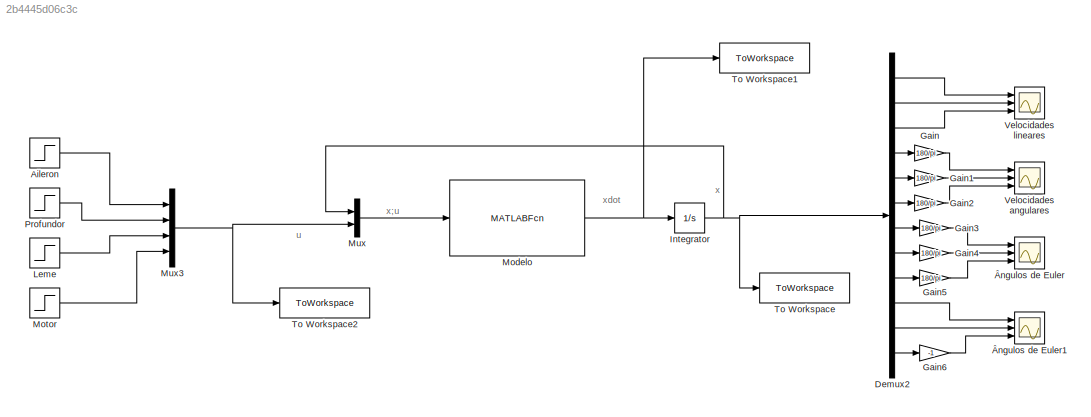
MODEL slx_2b4445d06c3c
KIND model
CONFIG AbsTol = auto
CONFIG EnableMultiTasking = off
CONFIG FixedStep = 0.01
CONFIG MaxStep = auto
CONFIG MinStep = auto
CONFIG RelTol = 1e-3
CONFIG SampleTimeConstraint = Unconstrained
CONFIG SolverName = ode4
CONFIG StartTime = 0.0
CONFIG StopTime = 30
BLOCK [Step] Aileron
  After = ut(1)
  SampleTime = 0
  Time = 0
BLOCK [Demux] Demux2
  Outputs = 12
  Ports = [1, 12]
BLOCK [Gain] Gain
  Gain = 180/pi
BLOCK [Gain] Gain1
  Gain = 180/pi
BLOCK [Gain] Gain2
  Gain = 180/pi
BLOCK [Gain] Gain3
  Gain = 180/pi
BLOCK [Gain] Gain4
  Gain = 180/pi
BLOCK [Gain] Gain5
  Gain = 180/pi
BLOCK [Gain] Gain6
  Gain = -1
BLOCK [Integrator] Integrator
  InitialCondition = xt
  Ports = [1, 1]
BLOCK [Step] Leme
  After = ut(3)
  SampleTime = 0
  Time = 0
BLOCK [MATLABFcn] Modelo
  MATLABFcn = smlk_model(S,u(1:12),u(13:16))
  Ports = [1, 1]
BLOCK [Step] Motor
  After = ut(4)
  SampleTime = 0
  Time = 0
BLOCK [Mux] Mux
  DisplayOption = bar
  Inputs = 2
  Ports = [2, 1]
BLOCK [Mux] Mux3
  DisplayOption = bar
  Ports = [4, 1]
BLOCK [Step] Profundor
  After = ut(2)
  SampleTime = 0
  Time = 0
BLOCK [ToWorkspace] To Workspace
  FixptAsFi = on
  MaxDataPoints = inf
  Ports = [1]
  SampleTime = -1
  SaveFormat = Timeseries
  VariableName = data
BLOCK [ToWorkspace] To Workspace1
  FixptAsFi = on
  MaxDataPoints = inf
  Ports = [1]
  SampleTime = -1
  SaveFormat = Timeseries
  VariableName = datadot
BLOCK [ToWorkspace] To Workspace2
  FixptAsFi = on
  MaxDataPoints = inf
  Ports = [1]
  SampleTime = -1
  SaveFormat = Timeseries
  VariableName = u
BLOCK [Scope] Velocidades angulares
  Floating = off
  NumInputPorts = 3
  Ports = [3]
  ScopeSpecificationString = Simulink.scopes.TimeScopeBlockCfg('CurrentConfiguration', extmgr.ConfigurationSet(extmgr.Configuration('Core','General UI',true),extmgr.Configuration('Core','Source UI',true),extmgr.Configuration('Sources','WiredSimulink',true,'DataLoggingVariableName','ScopeData1'),extmgr.Configuration('Visuals','Time Domain',true,'SerializedDisplays',{struct('MinYLimReal','-12.43358','MaxYLimReal','1.28891','YLa...<+2717ch>
BLOCK [Scope] Velocidades lineares
  Floating = off
  NumInputPorts = 3
  Ports = [3]
  ScopeSpecificationString = Simulink.scopes.TimeScopeBlockCfg('CurrentConfiguration', extmgr.ConfigurationSet(extmgr.Configuration('Core','General UI',true),extmgr.Configuration('Core','Source UI',true),extmgr.Configuration('Sources','WiredSimulink',true),extmgr.Configuration('Visuals','Time Domain',true,'SerializedDisplays',{struct('MinYLimReal','15.1355','MaxYLimReal','23.77542','YLabelReal','','MinYLimMag','15.1355','MaxY...<+2685ch>
BLOCK [Scope] Ângulos de Euler
  Floating = off
  NumInputPorts = 3
  Ports = [3]
  ScopeSpecificationString = Simulink.scopes.TimeScopeBlockCfg('CurrentConfiguration', extmgr.ConfigurationSet(extmgr.Configuration('Core','General UI',true),extmgr.Configuration('Core','Source UI',true),extmgr.Configuration('Sources','WiredSimulink',true,'DataLoggingVariableName','ScopeData2'),extmgr.Configuration('Visuals','Time Domain',true,'SerializedDisplays',{struct('MinYLimReal','-69.59516','MaxYLimReal','7.69599','YLa...<+2749ch>
BLOCK [Scope] Ângulos de Euler1
  Floating = off
  NumInputPorts = 3
  Ports = [3]
  ScopeSpecificationString = Simulink.scopes.TimeScopeBlockCfg('CurrentConfiguration', extmgr.ConfigurationSet(extmgr.Configuration('Core','General UI',true),extmgr.Configuration('Core','Source UI',true),extmgr.Configuration('Sources','WiredSimulink',true,'DataLoggingVariableName','ScopeData3'),extmgr.Configuration('Visuals','Time Domain',true,'SerializedDisplays',{struct('MinYLimReal','-31.82062','MaxYLimReal','286.38554','Y...<+2731ch>
ANNOTATION (root): u
ANNOTATION (root): x
ANNOTATION (root): x;u
ANNOTATION (root): xdot
LINE Aileron:1 -> Mux3:1
LINE Demux2:1 -> Velocidades lineares:1
LINE Demux2:10 -> Ângulos de Euler1:1
LINE Demux2:11 -> Ângulos de Euler1:2
LINE Demux2:12 -> Gain6:1
LINE Demux2:2 -> Velocidades lineares:2
LINE Demux2:3 -> Velocidades lineares:3
LINE Demux2:4 -> Gain:1
LINE Demux2:5 -> Gain1:1
LINE Demux2:6 -> Gain2:1
LINE Demux2:7 -> Gain3:1
LINE Demux2:8 -> Gain4:1
LINE Demux2:9 -> Gain5:1
LINE Gain1:1 -> Velocidades angulares:2
LINE Gain2:1 -> Velocidades angulares:3
LINE Gain3:1 -> Ângulos de Euler:1
LINE Gain4:1 -> Ângulos de Euler:2
LINE Gain5:1 -> Ângulos de Euler:3
LINE Gain6:1 -> Ângulos de Euler1:3
LINE Gain:1 -> Velocidades angulares:1
NET Integrator:1 -> Demux2:1, Mux:1, To Workspace:1
LINE Leme:1 -> Mux3:3
NET Modelo:1 -> Integrator:1, To Workspace1:1
LINE Motor:1 -> Mux3:4
NET Mux3:1 -> Mux:2, To Workspace2:1
LINE Mux:1 -> Modelo:1
LINE Profundor:1 -> Mux3:2
note: NET lines group one-source signal fan-out (src -> all destinations, sorted); 1:1 wires keep LINE
